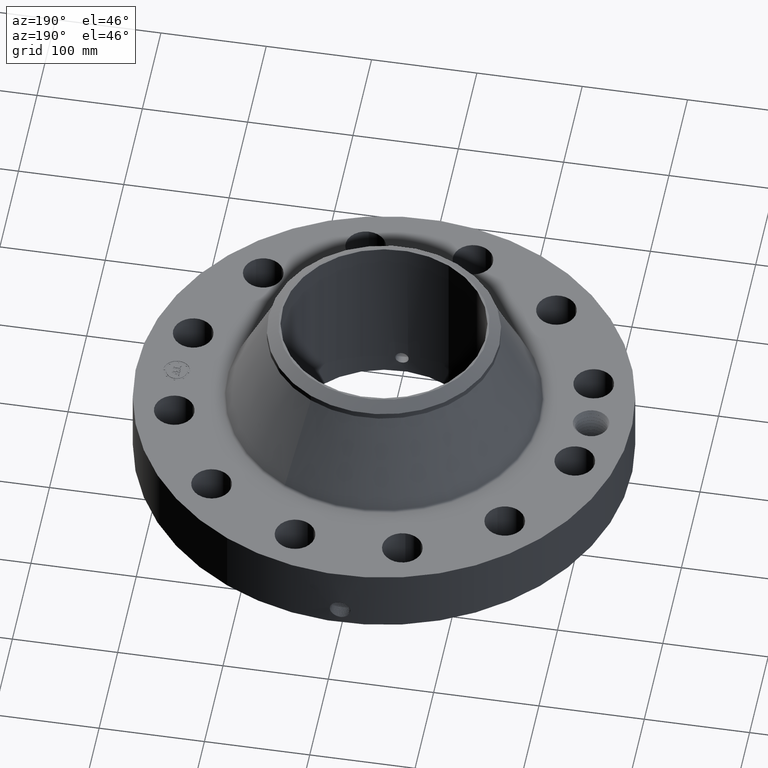
[diagram: clean part render]
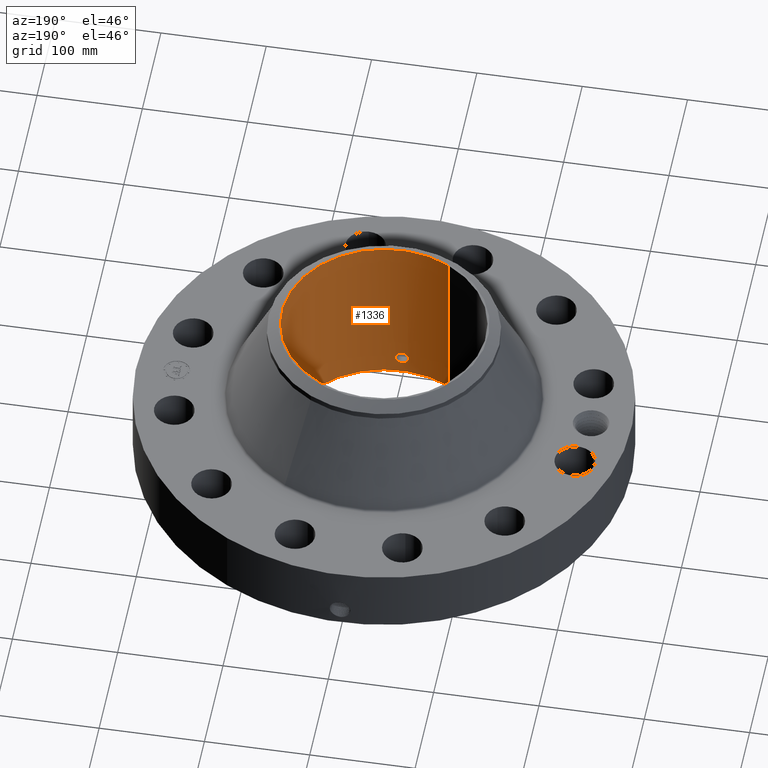
[diagram: same view with one face highlighted and labeled with its STEP entity id]
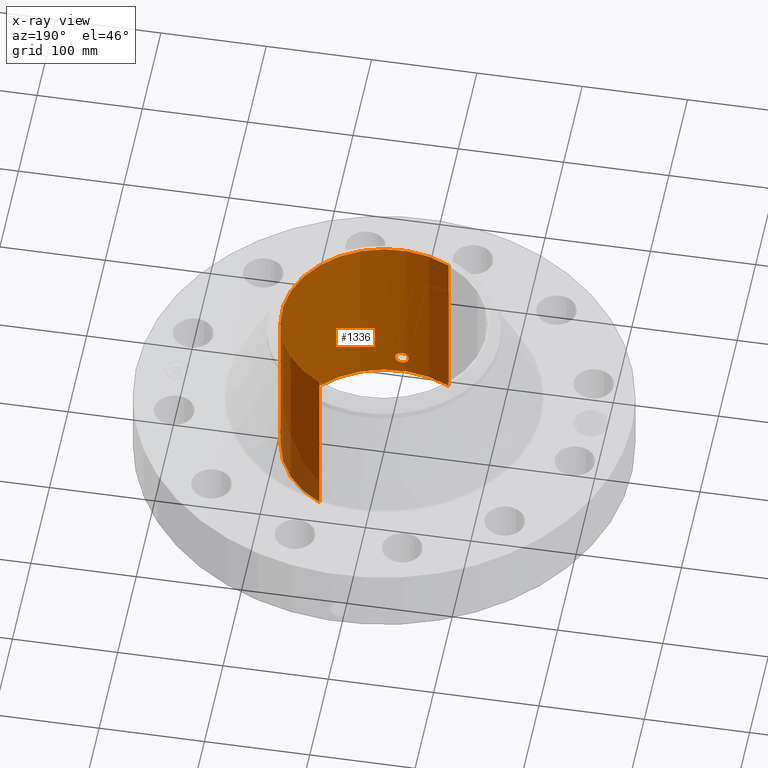
[diagram: x-ray of the same camera — body ghosted, the highlighted face saturated]
A machine part, auxiliary view. The second image highlights one B-rep face of the part: STEP entity #1336.
The next image is the same camera in x-ray: the body ghosted, the highlighted face saturated — about 6% of this face is hidden behind the body in this view.
In plain terms, the highlighted cylindrical surface (partial cylindrical patch) has radius 96.8375 mm, axis along (0, 0, -1).
Its self-contained STEP definition (entity closure, byte-faithful):
#253=AXIS2_PLACEMENT_3D('Circle Axis2P3D',#251,#252,$) ;
#1267=AXIS2_PLACEMENT_3D('Cylinder Axis2P3D',#1264,#1265,#1266) ;
#1271=AXIS2_PLACEMENT_3D('Circle Axis2P3D',#1269,#1270,$) ;
#251=CARTESIAN_POINT('Axis2P3D Location',(0.,0.,0.250000000001)) ;
#255=CARTESIAN_POINT('Vertex',(1.82780986594,3.34578351722,0.250000000001)) ;
#257=CARTESIAN_POINT('Vertex',(-1.82780986594,-3.34578351722,0.250000000001)) ;
#1264=CARTESIAN_POINT('Axis2P3D Location',(0.,0.,3.44000000001)) ;
#1269=CARTESIAN_POINT('Axis2P3D Location',(0.,0.,6.63000000003)) ;
#1273=CARTESIAN_POINT('Vertex',(1.82780986594,3.34578351722,6.63000000003)) ;
#1275=CARTESIAN_POINT('Vertex',(-1.82780986594,-3.34578351722,6.63000000003)) ;
#1278=CARTESIAN_POINT('Line Origine',(1.82780986594,3.34578351722,3.44000000001)) ;
#1283=CARTESIAN_POINT('Line Origine',(-1.82780986594,-3.34578351722,3.44000000001)) ;
#1295=CARTESIAN_POINT('Control Point',(0.219395640473,-3.8061820507,0.820143615352)) ;
#1296=CARTESIAN_POINT('Control Point',(0.206921955863,-3.80690105783,0.797310688828)) ;
#1297=CARTESIAN_POINT('Control Point',(0.191479535062,-3.80773992011,0.776103385995)) ;
#1298=CARTESIAN_POINT('Control Point',(0.173348524012,-3.80863375974,0.757033477188)) ;
#1299=CARTESIAN_POINT('Control Point',(0.112159828047,-3.81121821337,0.707567285485)) ;
#1300=CARTESIAN_POINT('Control Point',(0.0350222215182,-3.81289731306,0.684035985987)) ;
#1301=CARTESIAN_POINT('Control Point',(-0.0195176224142,-3.81302341806,0.682387728951)) ;
#1302=CARTESIAN_POINT('Control Point',(-0.124090328394,-3.81117723847,0.707508116152)) ;
#1303=CARTESIAN_POINT('Control Point',(-0.203127633407,-3.80735227264,0.780369898713)) ;
#1304=CARTESIAN_POINT('Control Point',(-0.232118051325,-3.80546721722,0.826556499551)) ;
#1305=CARTESIAN_POINT('Control Point',(-0.255824896325,-3.80391270875,0.904723688329)) ;
#1306=CARTESIAN_POINT('Control Point',(-0.248310376468,-3.80440501816,0.984139820327)) ;
#1307=CARTESIAN_POINT('Control Point',(-0.242075942917,-3.80481956847,1.01074655558)) ;
#1308=CARTESIAN_POINT('Control Point',(-0.232332436044,-3.80543634897,1.03617573921)) ;
#1309=CARTESIAN_POINT('Control Point',(-0.219395640473,-3.8061820507,1.05985638466)) ;
#1310=CARTESIAN_POINT('Vertex',(0.219395640473,-3.8061820507,0.820143615352)) ;
#1312=CARTESIAN_POINT('Vertex',(-0.219395640473,-3.8061820507,1.05985638466)) ;
#1316=CARTESIAN_POINT('Control Point',(-0.219395640473,-3.8061820507,1.05985638466)) ;
#1317=CARTESIAN_POINT('Control Point',(-0.206921955856,-3.80690105783,1.08268931119)) ;
#1318=CARTESIAN_POINT('Control Point',(-0.191479535043,-3.80773992011,1.10389661404)) ;
#1319=CARTESIAN_POINT('Control Point',(-0.173348524037,-3.80863375974,1.1229665228)) ;
#1320=CARTESIAN_POINT('Control Point',(-0.112159828064,-3.81121821337,1.17243271452)) ;
#1321=CARTESIAN_POINT('Control Point',(-0.0350222215209,-3.81289731306,1.19596401402)) ;
#1322=CARTESIAN_POINT('Control Point',(0.0195176224154,-3.81302341806,1.19761227105)) ;
#1323=CARTESIAN_POINT('Control Point',(0.1240903284,-3.81117723847,1.17249188385)) ;
#1324=CARTESIAN_POINT('Control Point',(0.203127633415,-3.80735227264,1.09963010129)) ;
#1325=CARTESIAN_POINT('Control Point',(0.23211805132,-3.80546721722,1.05344350047)) ;
#1326=CARTESIAN_POINT('Control Point',(0.255824896325,-3.80391270875,0.975276311684)) ;
#1327=CARTESIAN_POINT('Control Point',(0.248310376468,-3.80440501816,0.89586017968)) ;
#1328=CARTESIAN_POINT('Control Point',(0.242075942917,-3.80481956847,0.869253444423)) ;
#1329=CARTESIAN_POINT('Control Point',(0.232332436044,-3.80543634897,0.843824260802)) ;
#1330=CARTESIAN_POINT('Control Point',(0.219395640473,-3.8061820507,0.820143615352)) ;
#252=DIRECTION('Axis2P3D Direction',(0.,0.,-0.0393700787402)) ;
#1265=DIRECTION('Axis2P3D Direction',(0.,0.,-0.0393700787402)) ;
#1266=DIRECTION('Axis2P3D XDirection',(-0.0188750212049,-0.0345504945626,0.)) ;
#1270=DIRECTION('Axis2P3D Direction',(0.,0.,-0.0393700787402)) ;
#1279=DIRECTION('Vector Direction',(0.,0.,-0.0393700787402)) ;
#1284=DIRECTION('Vector Direction',(0.,0.,-0.0393700787402)) ;
#1280=VECTOR('Line Direction',#1279,0.0393700787402) ;
#1285=VECTOR('Line Direction',#1284,0.0393700787402) ;
#1289=ORIENTED_EDGE('',*,*,#1277,.F.) ;
#1290=ORIENTED_EDGE('',*,*,#1282,.T.) ;
#1291=ORIENTED_EDGE('',*,*,#259,.T.) ;
#1292=ORIENTED_EDGE('',*,*,#1287,.F.) ;
#1333=ORIENTED_EDGE('',*,*,#1314,.F.) ;
#1334=ORIENTED_EDGE('',*,*,#1331,.F.) ;
#1335=FACE_BOUND('',#1332,.T.) ;
#1336=ADVANCED_FACE('PartBody',(#1293,#1335),#1268,.F.) ;
#1294=B_SPLINE_CURVE_WITH_KNOTS('',5,(#1295,#1296,#1297,#1298,#1299,#1300,#1301,#1302,#1303,#1304,#1305,#1306,#1307,#1308,#1309),.UNSPECIFIED.,.F.,.U.,(6,3,3,3,6),(0.,4.67474669922,14.0212810197,23.3712223144,28.2195285109),.UNSPECIFIED.) ;
#1315=B_SPLINE_CURVE_WITH_KNOTS('',5,(#1316,#1317,#1318,#1319,#1320,#1321,#1322,#1323,#1324,#1325,#1326,#1327,#1328,#1329,#1330),.UNSPECIFIED.,.F.,.U.,(6,3,3,3,6),(0.,4.67474670202,14.0212810224,23.371222318,28.2195285145),.UNSPECIFIED.) ;
#254=CIRCLE('generated circle',#253,3.81250000002) ;
#1272=CIRCLE('generated circle',#1271,3.81250000002) ;
#1268=CYLINDRICAL_SURFACE('generated cylinder',#1267,3.81250000002) ;
#259=EDGE_CURVE('',#256,#258,#254,.T.) ;
#1277=EDGE_CURVE('',#1274,#1276,#1272,.T.) ;
#1282=EDGE_CURVE('',#1274,#256,#1281,.T.) ;
#1287=EDGE_CURVE('',#1276,#258,#1286,.T.) ;
#1314=EDGE_CURVE('',#1311,#1313,#1294,.T.) ;
#1331=EDGE_CURVE('',#1313,#1311,#1315,.T.) ;
#1288=EDGE_LOOP('',(#1289,#1290,#1291,#1292)) ;
#1332=EDGE_LOOP('',(#1333,#1334)) ;
#1293=FACE_OUTER_BOUND('',#1288,.T.) ;
#1281=LINE('Line',#1278,#1280) ;
#1286=LINE('Line',#1283,#1285) ;
#256=VERTEX_POINT('',#255) ;
#258=VERTEX_POINT('',#257) ;
#1274=VERTEX_POINT('',#1273) ;
#1276=VERTEX_POINT('',#1275) ;
#1311=VERTEX_POINT('',#1310) ;
#1313=VERTEX_POINT('',#1312) ;